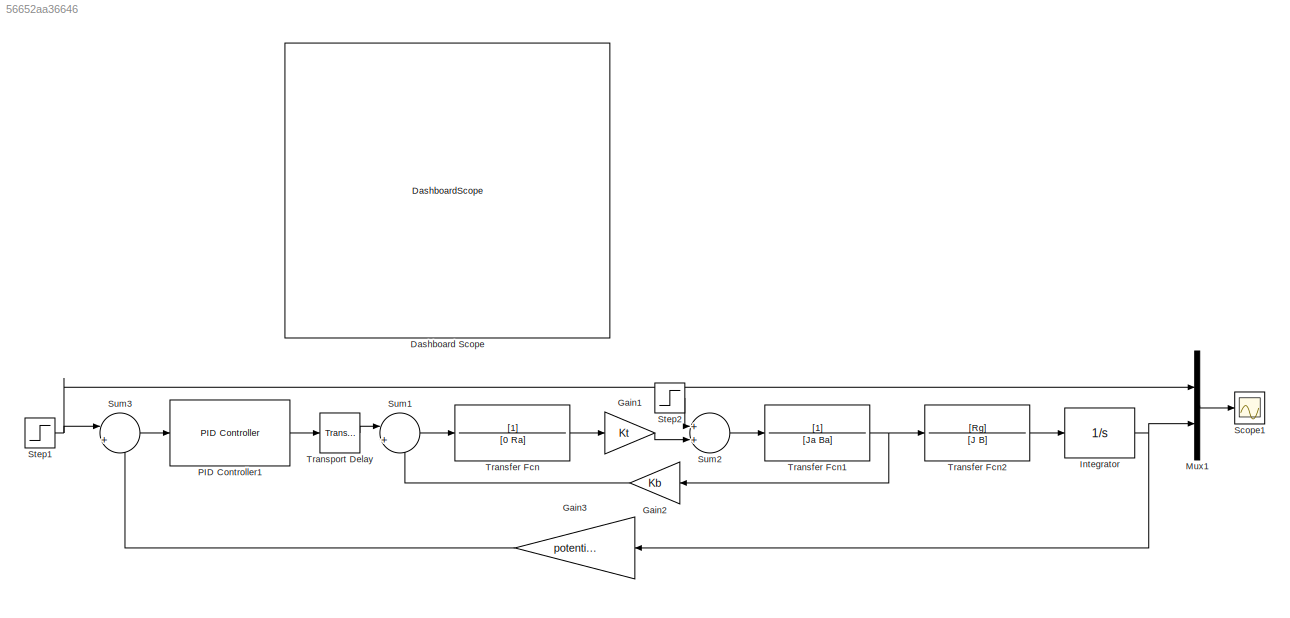
MODEL slx_56652aa36646
KIND model
CONFIG AbsTol = auto
CONFIG EnableMultiTasking = off
CONFIG FixedStep = auto
CONFIG MaxStep = auto
CONFIG MinStep = auto
CONFIG RelTol = 1e-3
CONFIG SampleTimeConstraint = Unconstrained
CONFIG Solver = VariableStepAuto
CONFIG SolverName = VariableStepAuto
CONFIG StartTime = 0.0
CONFIG StopTime = 5
BLOCK [DashboardScope] Dashboard Scope
BLOCK [Gain] Gain1
  Gain = Kt
  OutDataTypeStr = Inherit: Inherit via internal rule
  ParamDataTypeStr = Inherit: Inherit via internal rule
  SaturateOnIntegerOverflow = off
BLOCK [Gain] Gain2
  Gain = Kb
  OutDataTypeStr = Inherit: Inherit via internal rule
  ParamDataTypeStr = Inherit: Inherit via internal rule
  SaturateOnIntegerOverflow = off
BLOCK [Gain] Gain3
  Gain = potentiometer
  OutDataTypeStr = Inherit: Inherit via internal rule
  ParamDataTypeStr = Inherit: Inherit via internal rule
  SaturateOnIntegerOverflow = off
BLOCK [Integrator] Integrator
  Ports = [1, 1]
BLOCK [Mux] Mux1
  DisplayOption = bar
  Inputs = 2
  Ports = [2, 1]
BLOCK [Reference] PID Controller1  REF=simulink/Continuous/PID Controller
  Ports = [1, 1]
  SourceBlock = simulink/Continuous/PID Controller
  SourceProductBaseCode = SL
  SourceProductName = Simulink
  SourceType = PID 1dof
BLOCK [Scope] Scope1
  Floating = off
  NumInputPorts = 1
  Ports = [1]
  ScopeSpecificationString = Simulink.scopes.TimeScopeBlockCfg('CurrentConfiguration', extmgr.ConfigurationSet(extmgr.Configuration('Core','General UI',true),extmgr.Configuration('Core','Source UI',true),extmgr.Configuration('Sources','WiredSimulink',true),extmgr.Configuration('Visuals','Time Domain',true,'SerializedDisplays',{struct('MinYLimReal','-0.2708','MaxYLimReal','2.43716','YLabelReal','','MinYLimMag','0.00000','MaxYL...<+1748ch>
BLOCK [Step] Step1
  SampleTime = 0
BLOCK [Step] Step2
  SampleTime = 0
BLOCK [Sum] Sum1
  IconShape = round
  InputSameDT = off
  Inputs = |+-
  OutDataTypeStr = Inherit: Inherit via internal rule
  Ports = [2, 1]
  SaturateOnIntegerOverflow = off
BLOCK [Sum] Sum2
  IconShape = round
  InputSameDT = off
  Inputs = ++|
  OutDataTypeStr = Inherit: Inherit via internal rule
  Ports = [2, 1]
  SaturateOnIntegerOverflow = off
BLOCK [Sum] Sum3
  IconShape = round
  InputSameDT = off
  Inputs = |+-
  OutDataTypeStr = Inherit: Inherit via internal rule
  Ports = [2, 1]
  SaturateOnIntegerOverflow = off
BLOCK [TransferFcn] Transfer Fcn
  Denominator = [0 Ra]
BLOCK [TransferFcn] Transfer Fcn1
  Denominator = [Ja Ba]
BLOCK [TransferFcn] Transfer Fcn2
  Denominator = [J B]
  Numerator = [Rg]
BLOCK [TransportDelay] Transport Delay
  DelayTime = 0
  Ports = [1, 1]
LINE Gain1:1 -> Sum2:2
LINE Gain2:1 -> Sum1:2
LINE Gain3:1 -> Sum3:2
NET Integrator:1 -> Gain3:1, Mux1:2
LINE Mux1:1 -> Scope1:1
LINE PID Controller1:1 -> Transport Delay:1
NET Step1:1 -> Mux1:1, Sum3:1
LINE Step2:1 -> Sum2:1
LINE Sum1:1 -> Transfer Fcn:1
LINE Sum2:1 -> Transfer Fcn1:1
LINE Sum3:1 -> PID Controller1:1
NET Transfer Fcn1:1 -> Gain2:1, Transfer Fcn2:1
LINE Transfer Fcn2:1 -> Integrator:1
LINE Transfer Fcn:1 -> Gain1:1
LINE Transport Delay:1 -> Sum1:1
note: NET lines group one-source signal fan-out (src -> all destinations, sorted); 1:1 wires keep LINE
